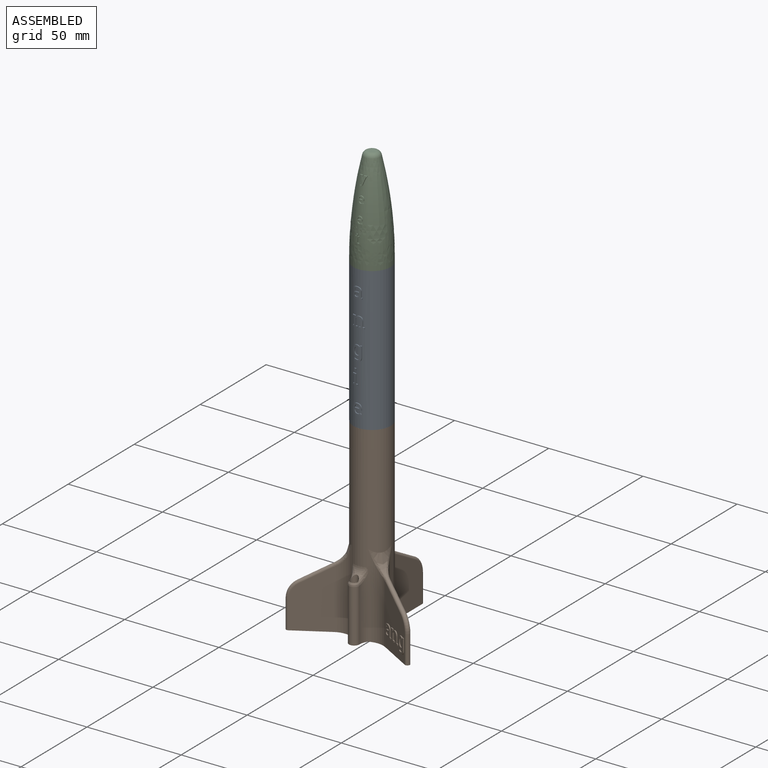
[diagram: assembled view]
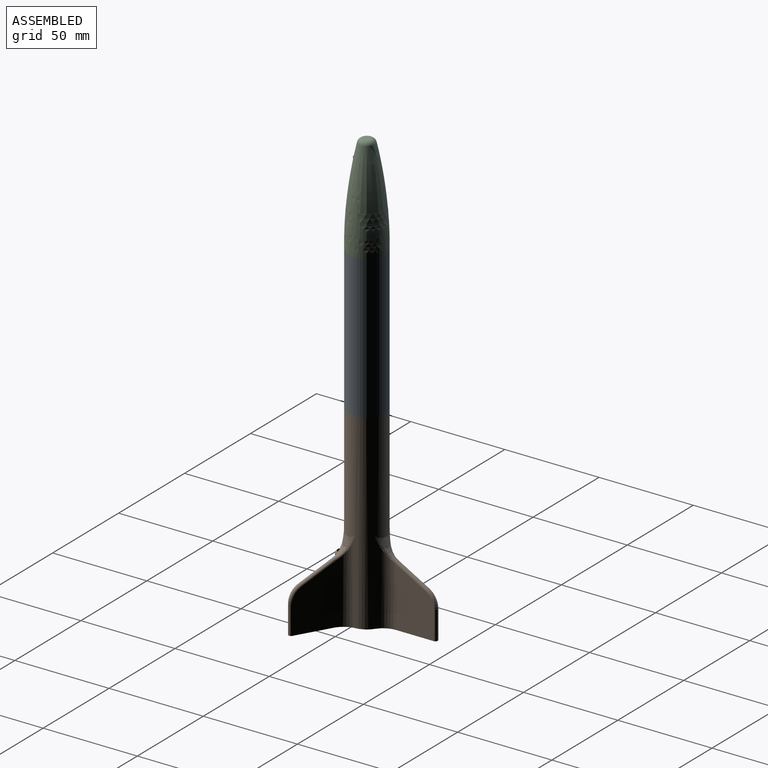
[diagram: assembled view, second angle]
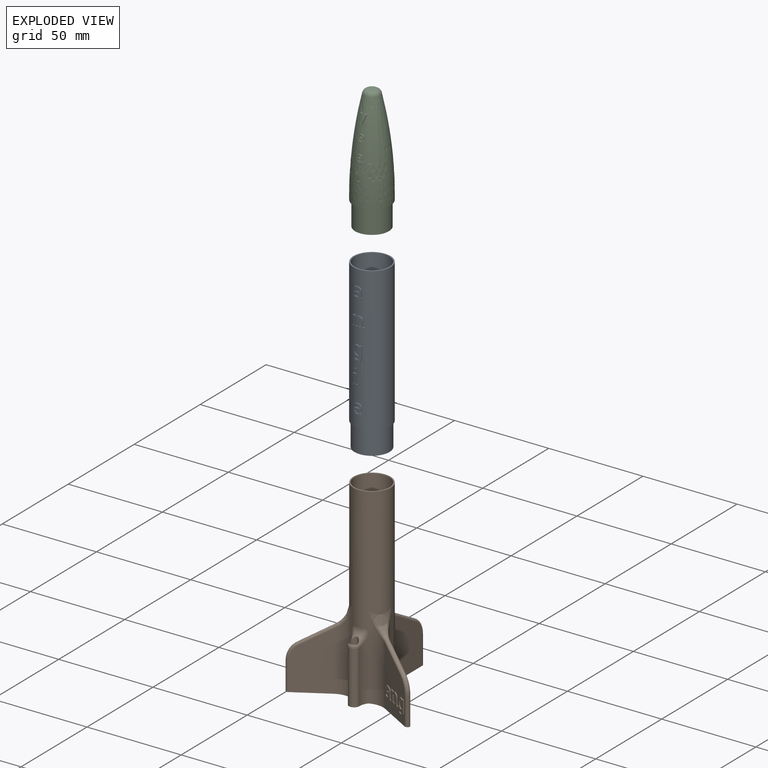
[diagram: exploded view]
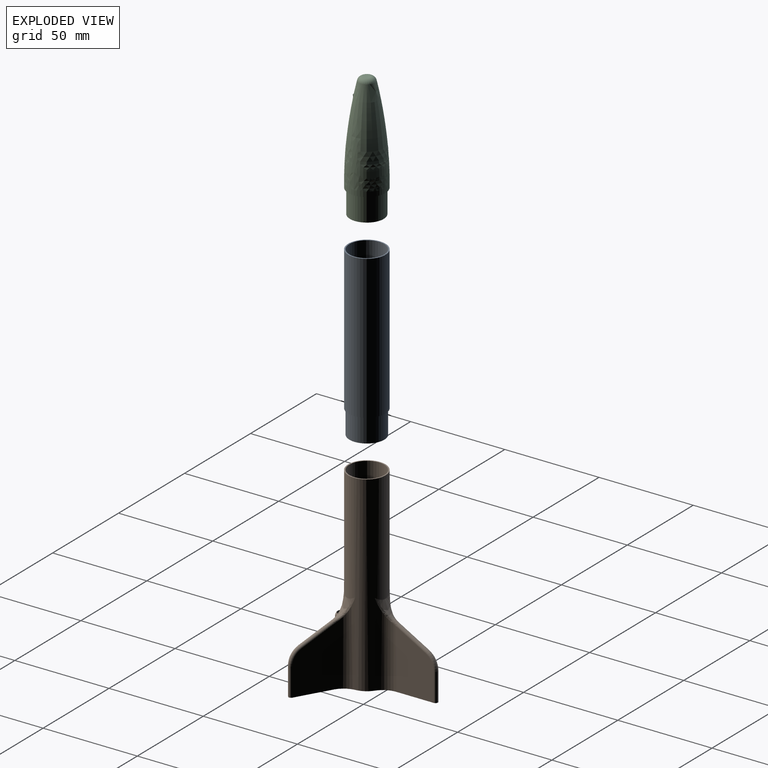
[diagram: exploded view, second angle]
ASSEMBLY  parts=3 mates=2
PART A: 165 faces, bbox 20x20.3x88.9 mm
  f0: cylinder r=9.92mm len=76.2mm, axis (0,0,-1), area 4659.5mm2, adj f1,f2,f13,f14,f15,f16,f17,f18
  f1: plane 19.84x19.84mm, normal (0,0,1), area 38.3mm2, adj f0,f164
  f2: plane 19.84x19.84mm, normal (0,0,-1), area 38.3mm2, adj f0,f3
  f3: cylinder r=9.28mm len=18.57mm, axis (0,0,1), area 740.8mm2, adj f2,f5
  f4: cylinder r=8.47mm len=19.05mm, axis (0,0,1), area 1013.8mm2, adj f5,f6,f162,f163
  f5: plane 18.57x18.57mm, normal (0,0,-1), area 45.3mm2, adj f3,f4
  f6: torus R=4.2mm, axis (0,0,-1), area 159mm2, adj f4,f153,f154,f155,f156,f157,f158,f159
  f7: cylinder r=4.19mm len=26.67mm, axis (0,0,1), area 247mm2, adj f9,f10,f11,f12,f164
  f8: cylinder r=1.65mm len=23.93mm, axis (0,0,1), area 216.3mm2, adj f11,f12
  f9: plane 2.66x0.38mm, normal (0,0,-1), area 0.7mm2, adj f7,f12
  f10: plane 2.66x0.38mm, normal (0,0,1), area 0.7mm2, adj f7,f11
  f11: torus R=5.47mm, axis (0,0,1), area 31mm2, adj f7,f8,f10,f164
  f12: torus R=5.47mm, axis (0,0,1), area 31mm2, adj f7,f8,f9,f164
  f13: plane 0.65x0.51mm, normal (1,0,0), area 0.3mm2, adj f0,f38,f39,f40
  f14: plane 1.09x0.51mm, normal (-1,0,0), area 0.6mm2, adj f0,f15,f37,f40
  f15: extruded ~0.92x0.73mm, area 0.5mm2, adj f0,f14,f16,f40
  f16: extruded ~1.18x0.66mm, area 0.6mm2, adj f0,f15,f17,f40
  f17: extruded ~1.54x0.52mm, area 0.8mm2, adj f0,f16,f18,f40
  f18: extruded ~1.39x0.59mm, area 0.8mm2, adj f0,f17,f19,f40
  f19: plane 2.69x0.51mm, normal (1,0,0), area 1.4mm2, adj f0,f18,f20,f40
  f20: extruded ~0.51x0.21mm, area 0.1mm2, adj f0,f19,f21,f40
  f21: extruded ~0.51x0.21mm, area 0.1mm2, adj f0,f20,f38,f40
  f22: plane 0.65x0.51mm, normal (-1,0,0), area 0.3mm2, adj f0,f23,f35,f40
  f23: extruded ~0.78x0.52mm, area 0.4mm2, adj f0,f22,f24,f40
  f24: extruded ~0.86x0.54mm, area 0.5mm2, adj f0,f23,f25,f40
  f25: extruded ~0.67x0.58mm, area 0.3mm2, adj f0,f24,f26,f40
  f26: extruded ~0.59x0.47mm, area 0.3mm2, adj f0,f25,f36,f40
  f27: extruded ~0.51x0.36mm, area 0.2mm2, adj f0,f28,f34,f40
  f28: extruded ~0.74x0.63mm, area 0.5mm2, adj f0,f27,f29,f40
  f29: extruded ~0.94x0.58mm, area 0.5mm2, adj f0,f28,f30,f40
  f30: extruded ~1.33x0.77mm, area 0.7mm2, adj f0,f29,f31,f40
  f31: extruded ~1.2x0.64mm, area 0.7mm2, adj f0,f30,f32,f40
  f32: extruded ~1.23x0.69mm, area 0.7mm2, adj f0,f31,f33,f40
  f33: extruded ~1.76x0.79mm, area 0.9mm2, adj f0,f32,f35,f40
  f34: extruded ~0.51x0.41mm, area 0.2mm2, adj f0,f27,f39,f40
  f35: plane 1.05x0.53mm, normal (0,0,1), area 0.5mm2, adj f0,f22,f33,f40
  f36: plane 0.59x0.53mm, normal (0.98,0,-0.18), area 0.3mm2, adj f0,f26,f37,f40
  f37: plane 0.79x0.71mm, normal (0,0,-1), area 0.4mm2, adj f0,f14,f36,f40
  f38: plane 0.58x0.41mm, normal (0.13,0,0.99), area 0.2mm2, adj f0,f13,f21,f40
  f39: plane 1.33x0.67mm, normal (0,0,-1), area 0.7mm2, adj f0,f13,f34,f40
  f40: cylinder r=9.92mm len=5.8mm, axis (0,0,-1), area 15.2mm2, adj f13,f14,f15,f16,f17,f18,f19,f20
  f41: extruded ~0.6x0.58mm, area 0.4mm2, adj f40,f42,f47,f49
  f42: plane 0.92x0.51mm, normal (-1,0,0), area 0.5mm2, adj f40,f41,f48,f49
  f43: extruded ~0.99x0.63mm, area 0.5mm2, adj f40,f44,f48,f49
  f44: extruded ~0.7x0.58mm, area 0.4mm2, adj f40,f43,f45,f49
  f45: extruded ~0.56x0.55mm, area 0.3mm2, adj f40,f44,f46,f49
  f46: extruded ~0.69x0.61mm, area 0.4mm2, adj f40,f45,f47,f49
  f47: extruded ~0.92x0.57mm, area 0.5mm2, adj f40,f41,f46,f49
  f48: plane 1.09x0.53mm, normal (0,0,-1), area 0.6mm2, adj f40,f42,f43,f49
  f49: cylinder r=9.92mm len=2.44mm, axis (0,0,-1), area 3.3mm2, adj f41,f42,f43,f44,f45,f46,f47,f48
  f50: cylinder r=9.92mm len=6.22mm, axis (0,0,-1), area 16mm2, adj f51,f52,f53,f54,f55,f56,f57,f58
  f51: plane 0.65x0.51mm, normal (-1,0,0), area 0.3mm2, adj f0,f50,f75,f76
  f52: plane 0.65x0.51mm, normal (1,0,0), area 0.3mm2, adj f0,f50,f74,f75
  f53: plane 2.71x0.51mm, normal (-1,0,0), area 1.4mm2, adj f0,f50,f54,f73
  f54: extruded ~1.05x0.54mm, area 0.6mm2, adj f0,f50,f53,f55
  f55: extruded ~0.89x0.54mm, area 0.5mm2, adj f0,f50,f54,f56
  f56: extruded ~0.78x0.55mm, area 0.4mm2, adj f0,f50,f55,f57
  f57: extruded ~0.58x0.57mm, area 0.4mm2, adj f0,f50,f56,f58
  f58: plane 3.28x0.51mm, normal (1,0,0), area 1.7mm2, adj f0,f50,f57,f74
  f59: plane 0.65x0.51mm, normal (-1,0,0), area 0.3mm2, adj f0,f50,f72,f73
  f60: plane 0.65x0.51mm, normal (1,0,0), area 0.3mm2, adj f0,f50,f71,f72
  f61: extruded ~0.7x0.69mm, area 0.5mm2, adj f0,f50,f62,f70
  f62: extruded ~0.96x0.54mm, area 0.5mm2, adj f0,f50,f61,f63
  f63: extruded ~1.4x0.64mm, area 0.8mm2, adj f0,f50,f62,f64
  f64: extruded ~1.64x0.6mm, area 0.9mm2, adj f0,f50,f63,f65
  f65: plane 2.73x0.51mm, normal (1,0,0), area 1.4mm2, adj f0,f50,f64,f71
  f66: plane 0.66x0.51mm, normal (-1,0,0), area 0.3mm2, adj f0,f50,f68,f69
  f67: plane 4x0.51mm, normal (-1,0,0), area 2mm2, adj f0,f50,f68,f76
  f68: plane 0.84x0.76mm, normal (-0.17,0,-0.99), area 0.4mm2, adj f0,f50,f66,f67
  f69: plane 1.75x0.95mm, normal (0,0,1), area 0.9mm2, adj f0,f50,f66,f70
  f70: plane 0.83x0.52mm, normal (1,0,0.09), area 0.4mm2, adj f0,f50,f61,f69
  f71: plane 0.84x0.73mm, normal (0.17,0,0.99), area 0.4mm2, adj f0,f50,f60,f65
  f72: plane 2.7x0.95mm, normal (0,0,-1), area 1.4mm2, adj f0,f50,f59,f60
  f73: plane 0.84x0.56mm, normal (-0.17,0,0.99), area 0.4mm2, adj f0,f50,f53,f59
  f74: plane 0.84x0.59mm, normal (0.17,0,0.99), area 0.4mm2, adj f0,f50,f52,f58
  f75: plane 2.7x1.05mm, normal (0,0,-1), area 1.4mm2, adj f0,f50,f51,f52
  f76: plane 0.84x0.76mm, normal (-0.17,0,0.99), area 0.4mm2, adj f0,f50,f51,f67
  f77: plane 5.52x0.51mm, normal (1,0,0), area 2.8mm2, adj f0,f78,f97,f99
  f78: extruded ~1.71x0.6mm, area 0.9mm2, adj f0,f77,f79,f99
  f79: extruded ~1.72x0.62mm, area 1mm2, adj f0,f78,f80,f99
  f80: extruded ~0.87x0.61mm, area 0.4mm2, adj f0,f79,f81,f99
  f81: extruded ~0.83x0.68mm, area 0.4mm2, adj f0,f80,f98,f99
  f82: extruded ~1.63x0.83mm, area 1mm2, adj f0,f83,f95,f99
  f83: extruded ~0.93x0.55mm, area 0.5mm2, adj f0,f82,f84,f99
  f84: extruded ~0.67x0.6mm, area 0.5mm2, adj f0,f83,f96,f99
  f85: extruded ~0.67x0.63mm, area 0.4mm2, adj f0,f86,f98,f99
  f86: extruded ~0.76x0.59mm, area 0.4mm2, adj f0,f85,f87,f99
  f87: extruded ~1x0.53mm, area 0.6mm2, adj f0,f86,f88,f99
  f88: extruded ~1.09x0.52mm, area 0.6mm2, adj f0,f87,f89,f99
  f89: plane 0.53x0.51mm, normal (-1,0,0), area 0.3mm2, adj f0,f88,f90,f99
  f90: extruded ~0.66x0.53mm, area 0.4mm2, adj f0,f89,f91,f99
  f91: extruded ~0.88x0.55mm, area 0.5mm2, adj f0,f90,f92,f99
  f92: extruded ~1.62x0.8mm, area 0.9mm2, adj f0,f91,f93,f99
  f93: extruded ~1.95x0.68mm, area 1.1mm2, adj f0,f92,f94,f99
  f94: plane 0.51x0.11mm, normal (-1,0,0), area 0.1mm2, adj f0,f93,f95,f99
  f95: extruded ~2.18x0.68mm, area 1.2mm2, adj f0,f82,f94,f99
  f96: plane 0.7x0.52mm, normal (-0.99,0,0.13), area 0.4mm2, adj f0,f84,f97,f99
  f97: plane 0.86x0.61mm, normal (0,0,1), area 0.4mm2, adj f0,f77,f96,f99
  f98: plane 0.79x0.57mm, normal (-0.95,0,0.32), area 0.4mm2, adj f0,f81,f85,f99
  f99: cylinder r=9.92mm len=7.95mm, axis (0,0,-1), area 19mm2, adj f77,f78,f79,f80,f81,f82,f83,f84
  f100: extruded ~1.09x0.64mm, area 0.6mm2, adj f99,f101,f109,f110
  f101: extruded ~0.77x0.53mm, area 0.4mm2, adj f99,f100,f102,f110
  f102: extruded ~0.59x0.53mm, area 0.4mm2, adj f99,f101,f103,f110
  f103: plane 2.57x0.51mm, normal (-1,0,0), area 1.3mm2, adj f99,f102,f104,f110
  f104: extruded ~0.57x0.53mm, area 0.4mm2, adj f99,f103,f105,f110
  f105: extruded ~0.76x0.53mm, area 0.4mm2, adj f99,f104,f106,f110
  f106: extruded ~1.09x0.64mm, area 0.7mm2, adj f99,f105,f107,f110
  f107: extruded ~1.57x0.58mm, area 0.8mm2, adj f99,f106,f108,f110
  f108: plane 0.51x0.11mm, normal (1,0,0), area 0.1mm2, adj f99,f107,f109,f110
  f109: extruded ~1.36x0.58mm, area 0.7mm2, adj f99,f100,f108,f110
  f110: cylinder r=9.92mm len=4.15mm, axis (0,0,-1), area 9.7mm2, adj f100,f101,f102,f103,f104,f105,f106,f107
  f111: cylinder r=9.92mm len=5.59mm, axis (0,0,-1), area 7.7mm2, adj f112,f113,f114,f115,f116,f117,f118,f119
  f112: plane 0.65x0.51mm, normal (-1,0,0), area 0.3mm2, adj f0,f111,f120,f121
  f113: plane 0.65x0.51mm, normal (1,0,0), area 0.3mm2, adj f0,f111,f119,f120
  f114: plane 4.8x0.51mm, normal (1,0,0), area 2.4mm2, adj f0,f111,f118,f119
  f115: plane 0.66x0.51mm, normal (-1,0,0), area 0.3mm2, adj f0,f111,f117,f118
  f116: plane 4x0.51mm, normal (-1,0,0), area 2mm2, adj f0,f111,f117,f121
  f117: plane 0.84x0.75mm, normal (-0.17,0,-0.99), area 0.4mm2, adj f0,f111,f115,f116
  f118: plane 1.86x0.93mm, normal (0,0,1), area 0.9mm2, adj f0,f111,f114,f115
  f119: plane 0.84x0.58mm, normal (0.17,0,0.99), area 0.4mm2, adj f0,f111,f113,f114
  f120: plane 2.7x1.01mm, normal (0,0,-1), area 1.4mm2, adj f0,f111,f112,f113
  f121: plane 0.84x0.75mm, normal (-0.17,0,0.99), area 0.4mm2, adj f0,f111,f112,f116
  f122: cylinder r=9.92mm len=1.04mm, axis (0,0,-1), area 1.1mm2, adj f123,f124,f125,f126
  f123: plane 1.04x0.51mm, normal (1,0,0), area 0.5mm2, adj f0,f122,f125,f126
  f124: plane 1.04x0.51mm, normal (-1,0,0), area 0.5mm2, adj f0,f122,f125,f126
  f125: plane 1.02x0.69mm, normal (0,0,1), area 0.5mm2, adj f0,f122,f123,f124
  f126: plane 1.02x0.69mm, normal (0,0,-1), area 0.5mm2, adj f0,f122,f123,f124
  f127: extruded ~0.87x0.61mm, area 0.5mm2, adj f128,f135,f149,f152
  f128: extruded ~0.95x0.53mm, area 0.5mm2, adj f127,f129,f149,f152
  f129: extruded ~1x0.52mm, area 0.5mm2, adj f128,f130,f149,f152
  f130: plane 0.51x0.13mm, normal (-1,0,0), area 0.1mm2, adj f129,f149,f150,f152
  f131: extruded ~1.82x0.58mm, area 1mm2, adj f0,f132,f146,f149
  f132: extruded ~1.71x0.68mm, area 1mm2, adj f0,f131,f133,f149
  f133: extruded ~1.68x0.79mm, area 1mm2, adj f0,f132,f134,f149
  f134: extruded ~1.99x0.72mm, area 1.1mm2, adj f0,f133,f147,f149
  f135: extruded ~1.08x0.59mm, area 0.6mm2, adj f127,f149,f151,f152
  f136: plane 0.66x0.56mm, normal (0.86,0,0.52), area 0.4mm2, adj f0,f141,f142,f149
  f137: plane 0.51x0.03mm, normal (0.85,0,-0.53), area 0mm2, adj f0,f138,f145,f149
  f138: plane 3.63x0.73mm, normal (0,0,-1), area 1.8mm2, adj f0,f137,f146,f149
  f139: extruded ~1.86x0.8mm, area 1.1mm2, adj f0,f140,f148,f149
  f140: extruded ~1.19x0.51mm, area 0.6mm2, adj f0,f139,f141,f149
  f141: extruded ~0.79x0.59mm, area 0.5mm2, adj f0,f136,f140,f149
  f142: extruded ~0.67x0.55mm, area 0.4mm2, adj f0,f136,f143,f149
  f143: extruded ~0.91x0.52mm, area 0.5mm2, adj f0,f142,f144,f149
  f144: extruded ~1.1x0.63mm, area 0.6mm2, adj f0,f143,f145,f149
  f145: extruded ~1.32x0.59mm, area 0.7mm2, adj f0,f137,f144,f149
  f146: plane 0.64x0.51mm, normal (1,0,0), area 0.3mm2, adj f0,f131,f138,f149
  f147: plane 0.51x0.23mm, normal (-1,0,0), area 0.1mm2, adj f0,f134,f148,f149
  f148: extruded ~2.02x0.71mm, area 1.1mm2, adj f0,f139,f147,f149
  f149: cylinder r=9.92mm len=5.8mm, axis (0,0,-1), area 14mm2, adj f127,f128,f129,f130,f131,f132,f133,f134
  f150: plane 2.58x0.72mm, normal (0,0,1), area 1.3mm2, adj f130,f149,f151,f152
  f151: plane 0.51x0.03mm, normal (0.92,0,0.4), area 0mm2, adj f135,f149,f150,f152
  f152: cylinder r=9.92mm len=2.59mm, axis (0,0,-1), area 3.2mm2, adj f127,f128,f129,f130,f135,f150,f151
  f153: extruded ~1.32x0.41mm, area 0.1mm2, adj f6,f154,f157,f164
  f154: extruded ~1.1x0.52mm, area 0.4mm2, adj f6,f153,f155,f164
  f155: extruded ~0.91x0.45mm, area 0.4mm2, adj f6,f154,f159,f164
  f156: plane 0.67x0.55mm, normal (-0.86,0,-0.52), area 0.3mm2, adj f6,f158,f159,f164
  f157: plane 0.03x0.02mm, normal (-0.85,0,0.53), area 0mm2, adj f6,f153,f161,f164
  f158: extruded ~0.79x0.76mm, area 0.6mm2, adj f6,f156,f163,f164
  f159: extruded ~0.67x0.41mm, area 0.2mm2, adj f6,f155,f156,f164
  f160: extruded ~2.02x0.69mm, area 0.5mm2, adj f6,f162,f164
  f161: plane 3.63x0.24mm, normal (0,0,1), area 0mm2, adj f6,f157,f164
  f162: extruded ~1.86x0.91mm, area 1.5mm2, adj f4,f6,f160,f163,f164
  f163: extruded ~1.19x0.81mm, area 1mm2, adj f4,f6,f158,f162,f164
  f164: cylinder r=9.28mm len=69.96mm, axis (0,0,-1), area 3693.9mm2, adj f1,f6,f7,f11,f12,f153,f154,f155
PART B: 155 faces, bbox 66.9x58.3x101.6 mm
  f0: plane 31.33x17.23mm, normal (-0.5,-0.87,0), area 435.9mm2, adj f5,f23,f27,f29,f30,f64,f65,f66
  f1: cylinder r=9.28mm len=18.57mm, axis (0,0,-1), area 889mm2, adj f4,f53
  f2: cylinder r=9.28mm len=73.66mm, axis (0,0,-1), area 4288.1mm2, adj f5,f54,f55,f56
  f3: cylinder r=9.92mm len=101.6mm, axis (0,0,-1), area 4468.9mm2, adj f4,f5,f9,f10,f11,f21,f22,f23
  f4: plane 19.84x19.84mm, normal (0,0,1), area 38.3mm2, adj f1,f3
  f5: plane 65.59x57.15mm, normal (0,0,-1), area 310.6mm2, adj f0,f2,f3,f6,f7,f9,f10,f18
  f6: plane 31.33x19.9mm, normal (1,0,0), area 508.4mm2, adj f5,f10,f16,f17,f18
  f7: plane 31.33x19.9mm, normal (-1,0,0), area 508.4mm2, adj f5,f9,f16,f17,f18
  f8: plane 2x1.12mm, normal (0,0.49,0.87), area 0.3mm2, adj f11,f14,f15
  f9: cylinder r=10.16mm len=44.42mm, axis (0,0,-1), area 353.8mm2, adj f3,f5,f7,f12,f14
  f10: cylinder r=10.16mm len=44.42mm, axis (0,0,-1), area 353.8mm2, adj f3,f5,f6,f13,f15
  f11: bspline ~22.86x10.86mm, area 53.4mm2, adj f3,f8,f12,f13
  f12: bspline ~12.77x8.53mm, area 9.7mm2, adj f9,f11,f14
  f13: bspline ~12.77x8.53mm, area 9.6mm2, adj f10,f11,f15
  f14: bspline ~5.66x4.14mm, area 4.2mm2, adj f8,f9,f12,f16
  f15: bspline ~5.66x4.14mm, area 4.2mm2, adj f8,f10,f13,f16
  f16: cylinder r=1.27mm len=15.96mm, axis (0,-0.87,0.49), area 70.1mm2, adj f6,f7,f14,f15,f17
  f17: torus R=8.89mm, axis (1,0,0), area 41.1mm2, adj f6,f7,f16,f18
  f18: cylinder r=1.27mm len=15mm, axis (0,0,1), area 59.9mm2, adj f5,f6,f7,f17
  f19: plane 1.82x1.15mm, normal (0.42,-0.24,0.87), area 0.3mm2, adj f22,f25,f28
  f20: plane 31.33x17.23mm, normal (0.5,0.87,0), area 508.4mm2, adj f5,f21,f27,f29,f30
  f21: cylinder r=10.16mm len=44.42mm, axis (0,0,-1), area 353.8mm2, adj f3,f5,f20,f26,f28
  f22: bspline ~19.8x12.33mm, area 53.4mm2, adj f3,f19,f24,f26
  f23: cylinder r=10.16mm len=44.42mm, axis (0,0,-1), area 353.8mm2, adj f0,f3,f5,f24,f25,f45
  f24: bspline ~12.77x10.19mm, area 9.6mm2, adj f22,f23,f25
  f25: bspline ~5.69x4.14mm, area 4.2mm2, adj f19,f23,f24,f27
  f26: bspline ~12.77x9.15mm, area 9.7mm2, adj f21,f22,f28
  f27: cylinder r=1.27mm len=14.75mm, axis (0.76,-0.44,-0.49), area 70.1mm2, adj f0,f20,f25,f28,f29
  f28: bspline ~5.04x4.19mm, area 4.2mm2, adj f19,f21,f26,f27
  f29: torus R=8.89mm, axis (-0.5,-0.87,0), area 41.1mm2, adj f0,f20,f27,f30
  f30: cylinder r=1.27mm len=15mm, axis (0,0,-1), area 59.9mm2, adj f0,f5,f20,f29
  f31: plane 31.33x17.23mm, normal (0.5,-0.87,0), area 508.4mm2, adj f5,f34,f40,f42,f43
  f32: plane 1.82x1.15mm, normal (-0.42,-0.24,0.87), area 0.3mm2, adj f35,f38,f41
  f33: plane 31.33x17.23mm, normal (-0.5,0.87,0), area 508.4mm2, adj f5,f36,f40,f42,f43
  f34: cylinder r=10.16mm len=44.42mm, axis (0,0,-1), area 353.8mm2, adj f3,f5,f31,f39,f41,f44
  f35: bspline ~19.8x12.33mm, area 53.4mm2, adj f3,f32,f37,f39
  f36: cylinder r=10.16mm len=44.42mm, axis (0,0,-1), area 353.8mm2, adj f3,f5,f33,f37,f38
  f37: bspline ~12.77x9.15mm, area 9.6mm2, adj f35,f36,f38
  f38: bspline ~5.04x4.19mm, area 4.2mm2, adj f32,f36,f37,f40
  f39: bspline ~12.77x10.19mm, area 9.7mm2, adj f34,f35,f41
  f40: cylinder r=1.27mm len=14.75mm, axis (-0.76,-0.44,-0.49), area 70.1mm2, adj f31,f33,f38,f41,f42
  f41: bspline ~5.69x4.14mm, area 4.2mm2, adj f32,f34,f39,f40
  f42: torus R=8.89mm, axis (-0.5,0.87,0), area 41.1mm2, adj f31,f33,f40,f43
  f43: cylinder r=1.27mm len=15mm, axis (0,0,-1), area 59.9mm2, adj f5,f31,f33,f42
  f44: cylinder r=7.73mm len=33.12mm, axis (0,0,-1), area 149.7mm2, adj f5,f34,f46,f51
  f45: cylinder r=7.73mm len=33.12mm, axis (0,0,-1), area 149.7mm2, adj f5,f23,f46,f49
  f46: cylinder r=2.74mm len=28.08mm, axis (0,0,-1), area 242mm2, adj f5,f44,f45,f50
  f47: cylinder r=2.1mm len=31.93mm, axis (0,0,-1), area 400.6mm2, adj f5,f48,f49,f50,f51
  f48: torus R=15mm, axis (0,0,-1), area 20mm2, adj f3,f47,f49,f51
  f49: bspline ~7.92x5.73mm, area 18.5mm2, adj f3,f45,f47,f48,f50
  f50: bspline ~5.49x2.74mm, area 13.4mm2, adj f46,f47,f49,f51
  f51: bspline ~7.92x5.73mm, area 17.4mm2, adj f3,f44,f47,f48,f50
  f52: cylinder r=7.62mm len=15.24mm, axis (0,0,-1), area 608mm2, adj f53,f54
  f53: plane 18.57x18.57mm, normal (0,0,1), area 88.4mm2, adj f1,f52
  f54: plane 18.57x18.57mm, normal (0,0,-1), area 88.4mm2, adj f2,f52
  f55: cylinder r=2.54mm len=3.75mm, axis (0,0,-1), area 9.6mm2, adj f2,f5,f56
  f56: plane 3.75x1.02mm, normal (0,0,1), area 2.6mm2, adj f2,f55
  f57: extruded ~1.11x0.94mm, area 0.5mm2, adj f58,f91,f92,f93
  f58: extruded ~0.89x0.81mm, area 0.4mm2, adj f57,f59,f92,f93
  f59: extruded ~0.6x0.56mm, area 0.3mm2, adj f58,f60,f92,f93
  f60: extruded ~0.76x0.64mm, area 0.4mm2, adj f59,f61,f92,f93
  f61: extruded ~1.17x0.97mm, area 0.6mm2, adj f60,f62,f92,f93
  f62: plane 1.26x1.02mm, normal (0,0,-1), area 0.6mm2, adj f61,f63,f92,f93
  f63: plane 0.99x0.44mm, normal (-0.87,0.5,0), area 0.5mm2, adj f62,f91,f92,f93
  f64: extruded ~0.48x0.44mm, area 0.2mm2, adj f0,f65,f90,f92
  f65: plane 1.5x1.16mm, normal (0,0,-1), area 0.7mm2, adj f0,f64,f66,f92
  f66: plane 0.7x0.44mm, normal (0.87,-0.5,0), area 0.4mm2, adj f0,f65,f67,f92
  f67: plane 0.66x0.64mm, normal (0.12,-0.07,0.99), area 0.2mm2, adj f0,f66,f68,f92
  f68: extruded ~0.45x0.27mm, area 0.1mm2, adj f0,f67,f69,f92
  f69: extruded ~0.44x0.26mm, area 0.1mm2, adj f0,f68,f70,f92
  f70: plane 2.89x0.44mm, normal (0.87,-0.5,0), area 1.5mm2, adj f0,f69,f71,f92
  f71: extruded ~1.49x0.8mm, area 0.9mm2, adj f0,f70,f72,f92
  f72: extruded ~1.69x1.27mm, area 0.9mm2, adj f0,f71,f73,f92
  f73: extruded ~1.35x1.07mm, area 0.7mm2, adj f0,f72,f74,f92
  f74: extruded ~1.11x0.94mm, area 0.6mm2, adj f0,f73,f75,f92
  f75: plane 1.17x0.44mm, normal (-0.87,0.5,0), area 0.6mm2, adj f0,f74,f76,f92
  f76: plane 0.98x0.86mm, normal (0,0,-1), area 0.4mm2, adj f0,f75,f77,f92
  f77: plane 0.63x0.5mm, normal (0.85,-0.49,-0.18), area 0.3mm2, adj f0,f76,f78,f92
  f78: extruded ~0.69x0.69mm, area 0.3mm2, adj f0,f77,f79,f92
  f79: extruded ~0.88x0.8mm, area 0.4mm2, adj f0,f78,f80,f92
  f80: extruded ~1.06x0.9mm, area 0.5mm2, adj f0,f79,f81,f92
  f81: extruded ~0.84x0.61mm, area 0.5mm2, adj f0,f80,f82,f92
  f82: plane 0.7x0.44mm, normal (-0.87,0.5,0), area 0.4mm2, adj f0,f81,f83,f92
  f83: plane 1.23x1mm, normal (0,0,1), area 0.6mm2, adj f0,f82,f84,f92
  f84: extruded ~1.9x1.39mm, area 1mm2, adj f0,f83,f85,f92
  f85: extruded ~1.32x0.85mm, area 0.8mm2, adj f0,f84,f86,f92
  f86: extruded ~1.29x0.68mm, area 0.7mm2, adj f0,f85,f87,f92
  f87: extruded ~1.49x1.15mm, area 0.8mm2, adj f0,f86,f88,f92
  f88: extruded ~1.13x0.95mm, area 0.5mm2, adj f0,f87,f89,f92
  f89: extruded ~0.94x0.84mm, area 0.5mm2, adj f0,f88,f90,f92
  f90: extruded ~0.46x0.39mm, area 0.2mm2, adj f0,f64,f89,f92
  f91: extruded ~0.81x0.76mm, area 0.5mm2, adj f57,f63,f92,f93
  f92: plane 6.24x4.56mm, normal (-0.5,-0.87,0), area 17.1mm2, adj f57,f58,f59,f60,f61,f62,f63,f64
  f93: plane 2.27x1.88mm, normal (-0.5,-0.87,0), area 4.1mm2, adj f57,f58,f59,f60,f61,f62,f63,f91
  f94: plane 1.04x0.89mm, normal (-0.15,0.08,0.99), area 0.5mm2, adj f0,f95,f119,f120
  f95: plane 0.7x0.44mm, normal (-0.87,0.5,0), area 0.4mm2, adj f0,f94,f96,f120
  f96: plane 2.77x1.89mm, normal (0,0,-1), area 1.5mm2, adj f0,f95,f97,f120
  f97: plane 0.7x0.44mm, normal (0.87,-0.5,0), area 0.4mm2, adj f0,f96,f98,f120
  f98: plane 1.04x0.89mm, normal (0.15,-0.08,0.99), area 0.5mm2, adj f0,f97,f99,f120
  f99: plane 3.53x0.44mm, normal (0.87,-0.5,0), area 1.8mm2, adj f0,f98,f100,f120
  f100: extruded ~0.76x0.73mm, area 0.4mm2, adj f0,f99,f101,f120
  f101: extruded ~0.98x0.86mm, area 0.4mm2, adj f0,f100,f102,f120
  f102: extruded ~1.08x0.92mm, area 0.5mm2, adj f0,f101,f103,f120
  f103: extruded ~1.13x0.6mm, area 0.6mm2, adj f0,f102,f104,f120
  f104: plane 2.92x0.44mm, normal (-0.87,0.5,0), area 1.5mm2, adj f0,f103,f105,f120
  f105: plane 1.04x0.89mm, normal (-0.15,0.08,0.99), area 0.5mm2, adj f0,f104,f106,f120
  f106: plane 0.7x0.44mm, normal (-0.87,0.5,0), area 0.4mm2, adj f0,f105,f107,f120
  f107: plane 2.77x1.89mm, normal (0,0,-1), area 1.5mm2, adj f0,f106,f108,f120
  f108: plane 0.7x0.44mm, normal (0.87,-0.5,0), area 0.4mm2, adj f0,f107,f109,f120
  f109: plane 1.04x0.89mm, normal (0.15,-0.08,0.99), area 0.5mm2, adj f0,f108,f110,f120
  f110: plane 2.94x0.44mm, normal (0.87,-0.5,0), area 1.5mm2, adj f0,f109,f111,f120
  f111: extruded ~1.76x0.72mm, area 1mm2, adj f0,f110,f112,f120
  f112: extruded ~1.56x1.19mm, area 0.8mm2, adj f0,f111,f113,f120
  f113: extruded ~1.15x0.96mm, area 0.5mm2, adj f0,f112,f114,f120
  f114: extruded ~0.9x0.82mm, area 0.5mm2, adj f0,f113,f115,f120
  f115: plane 0.89x0.48mm, normal (0.86,-0.5,0.09), area 0.5mm2, adj f0,f114,f116,f120
  f116: plane 1.88x1.38mm, normal (0,0,1), area 1mm2, adj f0,f115,f117,f120
  f117: plane 0.71x0.44mm, normal (-0.87,0.5,0), area 0.4mm2, adj f0,f116,f118,f120
  f118: plane 1.04x0.89mm, normal (-0.15,0.08,-0.99), area 0.5mm2, adj f0,f117,f119,f120
  f119: plane 4.29x0.44mm, normal (-0.87,0.5,0), area 2.2mm2, adj f0,f94,f118,f120
  f120: plane 6.12x5.79mm, normal (-0.5,-0.87,0), area 18.4mm2, adj f94,f95,f96,f97,f98,f99,f100,f101
  f121: extruded ~1.46x0.63mm, area 0.8mm2, adj f122,f152,f153,f154
  f122: plane 0.44x0.25mm, normal (0.87,-0.5,0), area 0.1mm2, adj f121,f123,f153,f154
  f123: extruded ~1.68x0.63mm, area 0.9mm2, adj f122,f124,f153,f154
  f124: extruded ~1.27x1.03mm, area 0.7mm2, adj f123,f125,f153,f154
  f125: extruded ~0.96x0.85mm, area 0.4mm2, adj f124,f126,f153,f154
  f126: extruded ~0.73x0.72mm, area 0.4mm2, adj f125,f127,f153,f154
  f127: plane 2.76x0.44mm, normal (-0.87,0.5,0), area 1.4mm2, adj f126,f128,f153,f154
  f128: extruded ~0.73x0.72mm, area 0.4mm2, adj f127,f129,f153,f154
  f129: extruded ~0.97x0.85mm, area 0.4mm2, adj f128,f152,f153,f154
  f130: extruded ~2.34x0.8mm, area 1.3mm2, adj f0,f131,f151,f153
  f131: plane 0.44x0.25mm, normal (-0.87,0.5,0), area 0.1mm2, adj f0,f130,f132,f153
  f132: extruded ~2.09x0.8mm, area 1.1mm2, adj f0,f131,f133,f153
  f133: extruded ~1.76x1.31mm, area 1mm2, adj f0,f132,f134,f153
  f134: extruded ~1.07x0.91mm, area 0.5mm2, adj f0,f133,f135,f153
  f135: extruded ~0.86x0.79mm, area 0.5mm2, adj f0,f134,f136,f153
  f136: plane 0.57x0.44mm, normal (-0.87,0.5,0), area 0.3mm2, adj f0,f135,f137,f153
  f137: extruded ~1.17x0.61mm, area 0.6mm2, adj f0,f136,f138,f153
  f138: extruded ~1.18x0.98mm, area 0.6mm2, adj f0,f137,f139,f153
  f139: extruded ~0.96x0.85mm, area 0.4mm2, adj f0,f138,f140,f153
  f140: extruded ~0.88x0.8mm, area 0.4mm2, adj f0,f139,f141,f153
  f141: plane 0.85x0.58mm, normal (-0.82,0.47,0.32), area 0.5mm2, adj f0,f140,f142,f153
  f142: extruded ~1.02x0.88mm, area 0.5mm2, adj f0,f141,f143,f153
  f143: extruded ~1.07x0.91mm, area 0.5mm2, adj f0,f142,f144,f153
  f144: extruded ~1.85x1.36mm, area 1mm2, adj f0,f143,f145,f153
  f145: extruded ~1.84x0.82mm, area 1mm2, adj f0,f144,f146,f153
  f146: plane 5.93x0.44mm, normal (0.87,-0.5,0), area 3mm2, adj f0,f145,f147,f153
  f147: plane 1.05x0.9mm, normal (0,0,1), area 0.5mm2, adj f0,f146,f148,f153
  f148: plane 0.76x0.49mm, normal (-0.86,0.5,0.13), area 0.4mm2, adj f0,f147,f149,f153
  f149: extruded ~0.87x0.8mm, area 0.5mm2, adj f0,f148,f150,f153
  f150: extruded ~1.11x0.94mm, area 0.5mm2, adj f0,f149,f151,f153
  f151: extruded ~1.77x1.31mm, area 1mm2, adj f0,f130,f150,f153
  f152: extruded ~1.26x1.02mm, area 0.7mm2, adj f121,f129,f153,f154
  f153: plane 8.54x4.43mm, normal (-0.5,-0.87,0), area 21.7mm2, adj f121,f122,f123,f124,f125,f126,f127,f128
  f154: plane 4.46x2.53mm, normal (-0.5,-0.87,0), area 11.2mm2, adj f121,f122,f123,f124,f125,f126,f127,f128
PART C: 118 faces, bbox 19.8x20.1x66 mm
  f0: revolved ~48.84x19.84mm, area 2461.3mm2, adj f12,f16,f18,f19,f20,f21,f22,f23
  f1: plane 17.3x17.3mm, normal (0,0,1), area 16.3mm2, adj f3,f117
  f2: cylinder r=8.98mm len=17.96mm, axis (0,0,-1), area 716.5mm2, adj f4,f13
  f3: cylinder r=8.34mm len=16.69mm, axis (0,0,-1), area 721.1mm2, adj f1,f4,f7,f8,f9,f10,f11
  f4: plane 17.96x17.96mm, normal (0,0,-1), area 79.4mm2, adj f2,f3,f5,f6,f8,f9,f10,f11
  f5: plane 13.2x6.35mm, normal (0,-1,0), area 83.8mm2, adj f4,f7,f8,f11
  f6: plane 13.2x6.35mm, normal (0,1,0), area 83.8mm2, adj f4,f7,f9,f10
  f7: plane 16.69x5.99mm, normal (0,0,1), area 44.9mm2, adj f3,f5,f6,f8,f9,f10,f11
  f8: cylinder r=1.27mm len=6.35mm, axis (0,0,-1), area 15.6mm2, adj f3,f4,f5,f7
  f9: cylinder r=1.27mm len=6.35mm, axis (0,0,-1), area 15.6mm2, adj f3,f4,f6,f7
  f10: cylinder r=1.27mm len=6.35mm, axis (0,0,-1), area 15.6mm2, adj f3,f4,f6,f7
  f11: cylinder r=1.27mm len=6.35mm, axis (0,0,-1), area 15.6mm2, adj f3,f4,f5,f7
  f12: cylinder r=9.92mm len=19.84mm, axis (0,0,1), area 158.3mm2, adj f0,f13
  f13: plane 19.84x19.84mm, normal (0,0,-1), area 55.8mm2, adj f2,f12
  f14: plane 5.62x5.62mm, normal (0,0,-1), area 24.8mm2, adj f117
  f15: plane 3.61x3.61mm, normal (0,0,1), area 10.2mm2, adj f16
  f16: torus R=1.81mm, axis (0,0,-1), area 69.9mm2, adj f0,f15
  f17: revolved ~5.23x4.33mm, area 6.9mm2, adj f18,f19,f20,f21,f22,f23,f24,f25
  f18: plane 2.32x0.97mm, normal (-0.95,0,0.32), area 1.2mm2, adj f0,f17,f19,f42
  f19: plane 0.52x0.42mm, normal (-0.16,0,-0.99), area 0.2mm2, adj f0,f17,f18,f20
  f20: plane 0.59x0.44mm, normal (-1,0,0), area 0.2mm2, adj f0,f17,f19,f43
  f21: plane 0.59x0.44mm, normal (1,0,0), area 0.2mm2, adj f0,f17,f22,f41
  f22: plane 0.55x0.42mm, normal (0.16,0,-0.99), area 0.2mm2, adj f0,f17,f21,f23
  f23: plane 1.84x0.92mm, normal (0.94,0,0.33), area 1mm2, adj f0,f17,f22,f24
  f24: plane 0.6x0.48mm, normal (0.97,0,0.25), area 0.2mm2, adj f0,f17,f23,f42
  f25: plane 3.81x1.42mm, normal (0.94,0,-0.35), area 2.1mm2, adj f0,f17,f26,f40
  f26: extruded ~0.65x0.61mm, area 0.4mm2, adj f0,f17,f25,f27
  f27: extruded ~0.71x0.55mm, area 0.4mm2, adj f0,f17,f26,f28
  f28: extruded ~0.55x0.21mm, area 0.1mm2, adj f0,f17,f27,f29
  f29: extruded ~0.56x0.2mm, area 0.1mm2, adj f0,f17,f28,f30
  f30: plane 0.59x0.53mm, normal (-0.99,0,0.13), area 0.3mm2, adj f0,f17,f29,f31
  f31: extruded ~0.54x0.13mm, area 0.1mm2, adj f0,f17,f30,f32
  f32: extruded ~0.54x0.18mm, area 0.1mm2, adj f0,f17,f31,f33
  f33: extruded ~0.53x0.35mm, area 0.2mm2, adj f0,f17,f32,f34
  f34: extruded ~0.56x0.43mm, area 0.3mm2, adj f0,f17,f33,f35
  f35: plane 0.56x0.39mm, normal (-0.92,0,0.38), area 0.2mm2, adj f0,f17,f34,f36
  f36: plane 3.16x1.32mm, normal (-0.93,0,-0.36), area 1.7mm2, adj f0,f17,f35,f37
  f37: plane 0.63x0.34mm, normal (-0.16,0,-0.99), area 0.2mm2, adj f0,f17,f36,f38
  f38: plane 0.6x0.44mm, normal (-1,0,0), area 0.2mm2, adj f0,f17,f37,f41
  f39: plane 0.6x0.44mm, normal (1,0,0), area 0.2mm2, adj f0,f17,f40,f43
  f40: plane 0.61x0.33mm, normal (0.15,0,-0.99), area 0.2mm2, adj f0,f17,f25,f39
  f41: plane 1.51x0.84mm, normal (0,0,1), area 0.8mm2, adj f0,f17,f21,f38
  f42: plane 0.51x0.02mm, normal (0,0,1), area 0mm2, adj f0,f17,f18,f24
  f43: plane 1.5x0.76mm, normal (0,0,1), area 0.8mm2, adj f0,f17,f20,f39
  f44: extruded ~1.35x0.79mm, area 0.7mm2, adj f0,f45,f59,f61
  f45: plane 0.53x0.15mm, normal (-1,0,0), area 0.1mm2, adj f0,f44,f46,f61
  f46: extruded ~1.32x0.6mm, area 0.7mm2, adj f0,f45,f47,f61
  f47: extruded ~1.12x0.55mm, area 0.7mm2, adj f0,f46,f48,f61
  f48: extruded ~1.14x0.53mm, area 0.6mm2, adj f0,f47,f49,f61
  f49: extruded ~1.21x0.63mm, area 0.7mm2, adj f0,f48,f50,f61
  f50: plane 0.57x0.42mm, normal (1,0,0), area 0.2mm2, adj f0,f49,f60,f61
  f51: plane 0.51x0.02mm, normal (0.85,0,-0.53), area 0mm2, adj f0,f52,f60,f61
  f52: extruded ~0.88x0.67mm, area 0.5mm2, adj f0,f51,f53,f61
  f53: extruded ~0.73x0.6mm, area 0.4mm2, adj f0,f52,f54,f61
  f54: extruded ~0.6x0.53mm, area 0.3mm2, adj f0,f53,f55,f61
  f55: extruded ~0.58x0.45mm, area 0.3mm2, adj f0,f54,f56,f61
  f56: plane 0.53x0.44mm, normal (0.86,0,0.52), area 0.3mm2, adj f0,f55,f57,f61
  f57: extruded ~0.61x0.53mm, area 0.3mm2, adj f0,f56,f58,f61
  f58: extruded ~0.79x0.55mm, area 0.4mm2, adj f0,f57,f59,f61
  f59: extruded ~1.24x0.69mm, area 0.7mm2, adj f0,f44,f58,f61
  f60: plane 2.42x0.61mm, normal (0,0,-1), area 1.2mm2, adj f0,f50,f51,f61
  f61: revolved ~3.87x3.24mm, area 6.2mm2, adj f44,f45,f46,f47,f48,f49,f50,f51
  f62: extruded ~0.72x0.58mm, area 0.4mm2, adj f61,f63,f67,f69
  f63: plane 0.51x0.02mm, normal (0.92,0,0.4), area 0mm2, adj f61,f62,f68,f69
  f64: plane 0.52x0.09mm, normal (-1,0,0), area 0mm2, adj f61,f65,f68,f69
  f65: extruded ~0.67x0.59mm, area 0.4mm2, adj f61,f64,f66,f69
  f66: extruded ~0.63x0.54mm, area 0.4mm2, adj f61,f65,f67,f69
  f67: extruded ~0.58x0.51mm, area 0.3mm2, adj f61,f62,f66,f69
  f68: plane 1.72x0.59mm, normal (0,0,1), area 0.9mm2, adj f61,f63,f64,f69
  f69: revolved ~1.73x1.03mm, area 1.4mm2, adj f62,f63,f64,f65,f66,f67,f68
  f70: extruded ~1.35x0.72mm, area 0.7mm2, adj f0,f71,f85,f87
  f71: plane 0.52x0.15mm, normal (-1,0,0), area 0.1mm2, adj f0,f70,f72,f87
  f72: extruded ~1.32x0.56mm, area 0.7mm2, adj f0,f71,f73,f87
  f73: extruded ~1.12x0.56mm, area 0.7mm2, adj f0,f72,f74,f87
  f74: extruded ~1.14x0.51mm, area 0.6mm2, adj f0,f73,f75,f87
  f75: extruded ~1.21x0.58mm, area 0.7mm2, adj f0,f74,f76,f87
  f76: plane 0.55x0.42mm, normal (1,0,0), area 0.2mm2, adj f0,f75,f86,f87
  f77: plane 0.51x0.02mm, normal (0.85,0,-0.53), area 0mm2, adj f0,f78,f86,f87
  f78: extruded ~0.88x0.62mm, area 0.5mm2, adj f0,f77,f79,f87
  f79: extruded ~0.73x0.58mm, area 0.4mm2, adj f0,f78,f80,f87
  f80: extruded ~0.6x0.53mm, area 0.3mm2, adj f0,f79,f81,f87
  f81: extruded ~0.57x0.45mm, area 0.3mm2, adj f0,f80,f82,f87
  f82: plane 0.52x0.44mm, normal (0.86,0,0.52), area 0.3mm2, adj f0,f81,f83,f87
  f83: extruded ~0.59x0.53mm, area 0.3mm2, adj f0,f82,f84,f87
  f84: extruded ~0.79x0.54mm, area 0.4mm2, adj f0,f83,f85,f87
  f85: extruded ~1.24x0.66mm, area 0.7mm2, adj f0,f70,f84,f87
  f86: plane 2.42x0.6mm, normal (0,0,-1), area 1.2mm2, adj f0,f76,f77,f87
  f87: revolved ~3.87x3.19mm, area 6.2mm2, adj f70,f71,f72,f73,f74,f75,f76,f77
  f88: extruded ~0.72x0.55mm, area 0.4mm2, adj f87,f89,f93,f95
  f89: plane 0.51x0.02mm, normal (0.92,0,0.4), area 0mm2, adj f87,f88,f94,f95
  f90: plane 0.52x0.09mm, normal (-1,0,0), area 0mm2, adj f87,f91,f94,f95
  f91: extruded ~0.67x0.56mm, area 0.4mm2, adj f87,f90,f92,f95
  f92: extruded ~0.63x0.53mm, area 0.4mm2, adj f87,f91,f93,f95
  f93: extruded ~0.58x0.51mm, area 0.3mm2, adj f87,f88,f92,f95
  f94: plane 1.72x0.58mm, normal (0,0,1), area 0.9mm2, adj f87,f89,f90,f95
  f95: revolved ~1.73x1.03mm, area 1.4mm2, adj f88,f89,f90,f91,f92,f93,f94
  f96: revolved ~4.7x2.19mm, area 4.1mm2, adj f97,f98,f99,f100,f101,f102,f103,f104
  f97: plane 0.9x0.57mm, normal (-1,0,0), area 0.5mm2, adj f0,f96,f115,f116
  f98: plane 0.54x0.5mm, normal (-1,0,0), area 0.3mm2, adj f0,f96,f114,f115
  f99: plane 2.26x0.63mm, normal (1,0,0), area 1.1mm2, adj f0,f96,f100,f113
  f100: extruded ~0.53x0.37mm, area 0.2mm2, adj f0,f96,f99,f101
  f101: extruded ~0.53x0.29mm, area 0.2mm2, adj f0,f96,f100,f102
  f102: extruded ~0.51x0.2mm, area 0.1mm2, adj f0,f96,f101,f103
  f103: extruded ~0.51x0.19mm, area 0.1mm2, adj f0,f96,f102,f104
  f104: plane 0.53x0.46mm, normal (0.98,0,0.2), area 0.2mm2, adj f0,f96,f103,f105
  f105: extruded ~0.52x0.28mm, area 0.2mm2, adj f0,f96,f104,f106
  f106: extruded ~0.52x0.37mm, area 0.2mm2, adj f0,f96,f105,f107
  f107: extruded ~0.66x0.57mm, area 0.4mm2, adj f0,f96,f106,f108
  f108: extruded ~0.78x0.58mm, area 0.4mm2, adj f0,f96,f107,f109
  f109: plane 2.27x0.63mm, normal (-1,0,0), area 1.1mm2, adj f0,f96,f108,f114
  f110: plane 0.54x0.5mm, normal (1,0,0), area 0.3mm2, adj f0,f96,f112,f113
  f111: plane 0.9x0.57mm, normal (1,0,0), area 0.5mm2, adj f0,f96,f112,f116
  f112: plane 0.71x0.53mm, normal (0,0,1), area 0.4mm2, adj f0,f96,f110,f111
  f113: plane 0.71x0.53mm, normal (0,0,-1), area 0.4mm2, adj f0,f96,f99,f110
  f114: plane 0.61x0.59mm, normal (0,0,-1), area 0.3mm2, adj f0,f96,f98,f109
  f115: plane 0.61x0.59mm, normal (0,0,1), area 0.3mm2, adj f0,f96,f97,f98
  f116: plane 0.68x0.58mm, normal (0,0,1), area 0.3mm2, adj f0,f96,f97,f111
  f117: revolved ~49.53x17.3mm, area 2104mm2, adj f1,f14
PLACE A t=(-13.43,42.43,-21.5)mm
PLACE B t=(-13.43,42.43,-123.1)mm
PLACE C t=(-13.43,42.43,42)mm
MATE fastened B.f1 <-> A.f0  axis (0,0,1) through (-13.43,42.43,-21.5)mm
MATE fastened A.f3 <-> C.f12  axis (0,0,1) through (-13.43,42.43,54.7)mm
